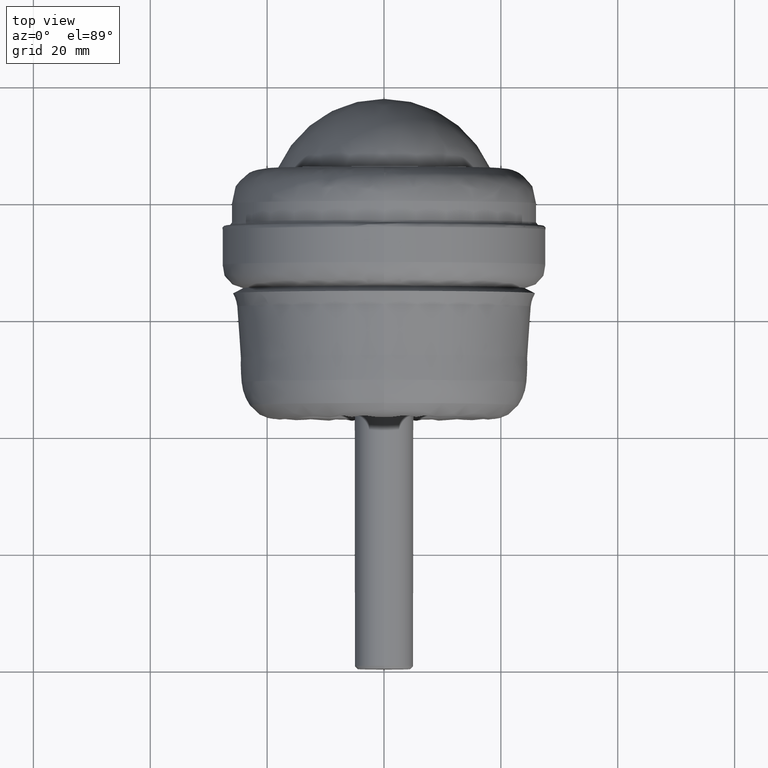
[diagram: clean part render]
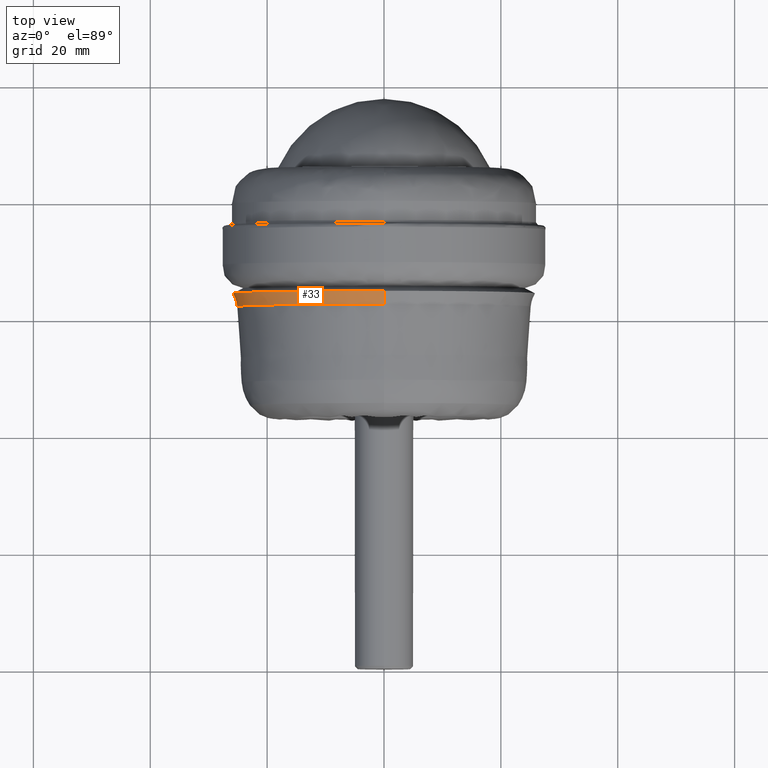
[diagram: same view with one face highlighted and labeled with its STEP entity id]
A machine part, top view. The second image highlights one B-rep face of the part: STEP entity #33.
In plain terms, the highlighted face is a freeform B-spline surface patch.
Its self-contained STEP definition (entity closure, byte-faithful):
#33 = ADVANCED_FACE ( 'NONE', ( #371 ), #1375, .F. ) ;
#79 = CARTESIAN_POINT ( 'NONE',  ( -50.86832977791135590, 63.61525904564879852, 25.43416488895568861 ) ) ;
#87 = CARTESIAN_POINT ( 'NONE',  ( 3.114786862024557523E-15, 63.61525904564879852, 25.43416488895568150 ) ) ;
#109 = CARTESIAN_POINT ( 'NONE',  ( 0.0000000000000000000, 62.05476966150285278, 0.0000000000000000000 ) ) ;
#166 = DIRECTION ( 'NONE',  ( 0.0000000000000000000, 0.0000000000000000000, -1.000000000000000000 ) ) ;
#171 = DIRECTION ( 'NONE',  ( 1.224646799147353700E-16, 0.0000000000000000000, 1.000000000000000000 ) ) ;
#186 = VERTEX_POINT ( 'NONE', #1317 ) ;
#207 = EDGE_CURVE ( 'NONE', #186, #312, #892, .T. ) ;
#208 = VERTEX_POINT ( 'NONE', #1027 ) ;
#230 = CARTESIAN_POINT ( 'NONE',  ( -50.20114947477638623, 62.05476966150285278, 25.10057473738820377 ) ) ;
#240 = DIRECTION ( 'NONE',  ( 0.0000000000000000000, 1.000000000000000000, 0.0000000000000000000 ) ) ;
#255 = EDGE_CURVE ( 'NONE', #208, #332, #1083, .T. ) ;
#298 = DIRECTION ( 'NONE',  ( 0.0000000000000000000, 1.000000000000000000, 0.0000000000000000000 ) ) ;
#305 = DIRECTION ( 'NONE',  ( 1.000000000000000000, 0.0000000000000000000, 0.0000000000000000000 ) ) ;
#312 = VERTEX_POINT ( 'NONE', #1191 ) ;
#332 = VERTEX_POINT ( 'NONE', #1093 ) ;
#371 = FACE_OUTER_BOUND ( 'NONE', #474, .T. ) ;
#388 = DIRECTION ( 'NONE',  ( 0.0000000000000000000, 0.0000000000000000000, -1.000000000000000000 ) ) ;
#416 = CIRCLE ( 'NONE', #1224, 25.83104309499999474 ) ;
#448 = DIRECTION ( 'NONE',  ( -1.000000000000000000, 0.0000000000000000000, 1.224646799147353207E-16 ) ) ;
#456 = ORIENTED_EDGE ( 'NONE', *, *, #255, .F. ) ;
#474 = EDGE_LOOP ( 'NONE', ( #1647, #456, #1139, #1550, #1619 ) ) ;
#482 = VERTEX_POINT ( 'NONE', #1554 ) ;
#501 = AXIS2_PLACEMENT_3D ( 'NONE', #1471, #298, #166 ) ;
#531 = CARTESIAN_POINT ( 'NONE',  ( -50.86832977791135590, 63.61525904564879852, -25.43416488895566729 ) ) ;
#661 = CARTESIAN_POINT ( 'NONE',  ( -6.229573724049115046E-15, 63.61525904564879852, -25.43416488895568150 ) ) ;
#679 = CARTESIAN_POINT ( 'NONE',  ( -50.37447838810400214, 62.85214409867310081, 25.18723919405201883 ) ) ;
#753 = EDGE_CURVE ( 'NONE', #332, #482, #1610, .T. ) ;
#818 = CARTESIAN_POINT ( 'NONE',  ( -6.326780848985820378E-15, 64.31225575343759715, -25.83104309500000539 ) ) ;
#823 = AXIS2_PLACEMENT_3D ( 'NONE', #1158, #305, #1169 ) ;
#826 = CARTESIAN_POINT ( 'NONE',  ( -6.147867701780275917E-15, 62.05476966150284568, -25.10057473738820022 ) ) ;
#889 = AXIS2_PLACEMENT_3D ( 'NONE', #109, #1262, #388 ) ;
#892 = CIRCLE ( 'NONE', #823, 5.836822150000000597 ) ;
#962 = CARTESIAN_POINT ( 'NONE',  ( -50.20114947477638623, 62.05476966150285278, -25.10057473738818246 ) ) ;
#1027 = CARTESIAN_POINT ( 'NONE',  ( -25.83104309500003026, 64.31225575343758294, 3.163390424492912950E-15 ) ) ;
#1075 = EDGE_CURVE ( 'NONE', #186, #208, #416, .T. ) ;
#1083 = CIRCLE ( 'NONE', #501, 25.83104309499999474 ) ;
#1093 = CARTESIAN_POINT ( 'NONE',  ( 3.163390424492909400E-15, 64.31225575343758294, 25.83104309499999829 ) ) ;
#1133 = EDGE_CURVE ( 'NONE', #312, #482, #1242, .T. ) ;
#1139 = ORIENTED_EDGE ( 'NONE', *, *, #1075, .F. ) ;
#1158 = CARTESIAN_POINT ( 'NONE',  ( 0.0000000000000000000, 61.42409546999999037, -30.90322438000000105 ) ) ;
#1169 = DIRECTION ( 'NONE',  ( 0.0000000000000000000, 0.0000000000000000000, -1.000000000000000000 ) ) ;
#1191 = CARTESIAN_POINT ( 'NONE',  ( 0.0000000000000000000, 62.05476966150285278, -25.10057473738813272 ) ) ;
#1224 = AXIS2_PLACEMENT_3D ( 'NONE', #1682, #240, #1401 ) ;
#1242 = CIRCLE ( 'NONE', #889, 25.10057473738813272 ) ;
#1262 = DIRECTION ( 'NONE',  ( 0.0000000000000000000, 1.000000000000000000, 0.0000000000000000000 ) ) ;
#1317 = CARTESIAN_POINT ( 'NONE',  ( 0.0000000000000000000, 64.31225575343758294, -25.83104309499999829 ) ) ;
#1375 =( BOUNDED_SURFACE ( )  B_SPLINE_SURFACE ( 3, 3, ( 
 ( #1825, #1398, #1413, #818 ),
 ( #87, #79, #531, #661 ),
 ( #1558, #679, #1410, #1819 ),
 ( #1810, #230, #962, #826 ) ),
 .UNSPECIFIED., .F., .F., .T. ) 
 B_SPLINE_SURFACE_WITH_KNOTS ( ( 4, 4 ),
 ( 4, 4 ),
 ( 0.0000000000000000000, 1.000000000000000000 ),
 ( 0.0000000000000000000, 1.000000000000000000 ),
 .UNSPECIFIED. ) 
 GEOMETRIC_REPRESENTATION_ITEM ( )  RATIONAL_B_SPLINE_SURFACE ( (
 ( 1.000000000000000000, 0.3333333333333334259, 0.3333333333333334259, 1.000000000000000000),
 ( 0.9860839012005456761, 0.3286946337335153179, 0.3286946337335153179, 0.9860839012005456761),
 ( 0.9860839012005456761, 0.3286946337335153179, 0.3286946337335153179, 0.9860839012005456761),
 ( 1.000000000000000000, 0.3333333333333334259, 0.3333333333333334259, 1.000000000000000000) ) ) 
 REPRESENTATION_ITEM ( '' )  SURFACE ( )  );
#1398 = CARTESIAN_POINT ( 'NONE',  ( -51.66208618999999658, 64.31225575343759715, 25.83104309500001250 ) ) ;
#1401 = DIRECTION ( 'NONE',  ( 0.0000000000000000000, 0.0000000000000000000, -1.000000000000000000 ) ) ;
#1410 = CARTESIAN_POINT ( 'NONE',  ( -50.37447838810401635, 62.85214409867310081, -25.18723919405199752 ) ) ;
#1413 = CARTESIAN_POINT ( 'NONE',  ( -51.66208619000000368, 64.31225575343759715, -25.83104309499999118 ) ) ;
#1470 = CARTESIAN_POINT ( 'NONE',  ( 3.784553482029945494E-15, 61.42409546999999037, 30.90322438000000105 ) ) ;
#1471 = CARTESIAN_POINT ( 'NONE',  ( 0.0000000000000000000, 64.31225575343758294, 0.0000000000000000000 ) ) ;
#1526 = AXIS2_PLACEMENT_3D ( 'NONE', #1470, #448, #171 ) ;
#1550 = ORIENTED_EDGE ( 'NONE', *, *, #207, .T. ) ;
#1554 = CARTESIAN_POINT ( 'NONE',  ( 3.118662137691519735E-15, 62.05476966150285278, 25.10057473738813627 ) ) ;
#1558 = CARTESIAN_POINT ( 'NONE',  ( 3.084547185835455481E-15, 62.85214409867309371, 25.18723919405200817 ) ) ;
#1610 = CIRCLE ( 'NONE', #1526, 5.836822150000000597 ) ;
#1619 = ORIENTED_EDGE ( 'NONE', *, *, #1133, .T. ) ;
#1647 = ORIENTED_EDGE ( 'NONE', *, *, #753, .F. ) ;
#1682 = CARTESIAN_POINT ( 'NONE',  ( 0.0000000000000000000, 64.31225575343758294, 0.0000000000000000000 ) ) ;
#1810 = CARTESIAN_POINT ( 'NONE',  ( 3.073933850890137958E-15, 62.05476966150284568, 25.10057473738820022 ) ) ;
#1819 = CARTESIAN_POINT ( 'NONE',  ( -6.169094371670910173E-15, 62.85214409867309371, -25.18723919405200817 ) ) ;
#1825 = CARTESIAN_POINT ( 'NONE',  ( 3.163390424492910189E-15, 64.31225575343759715, 25.83104309500000539 ) ) ;